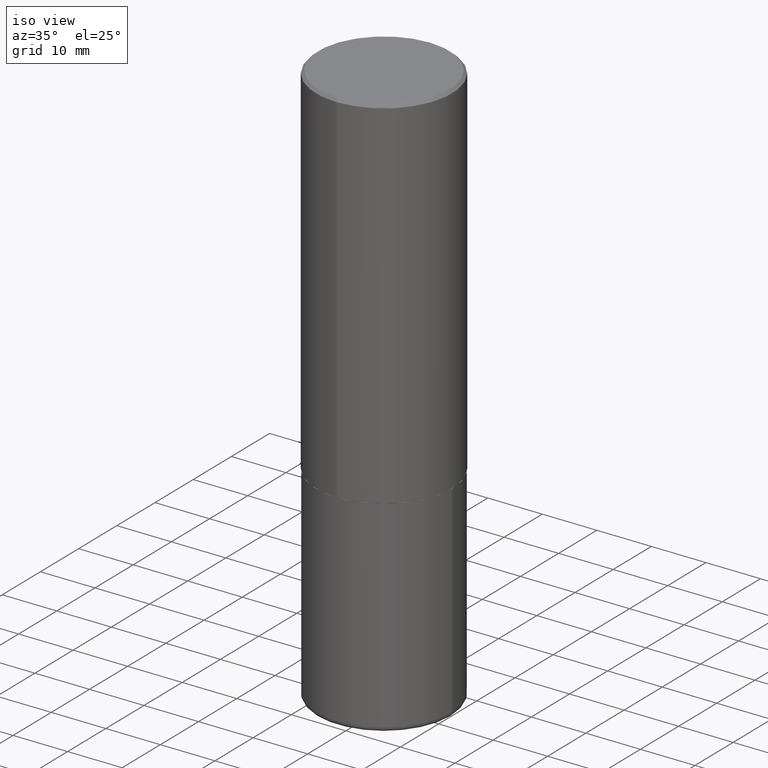
[diagram: clean part render]
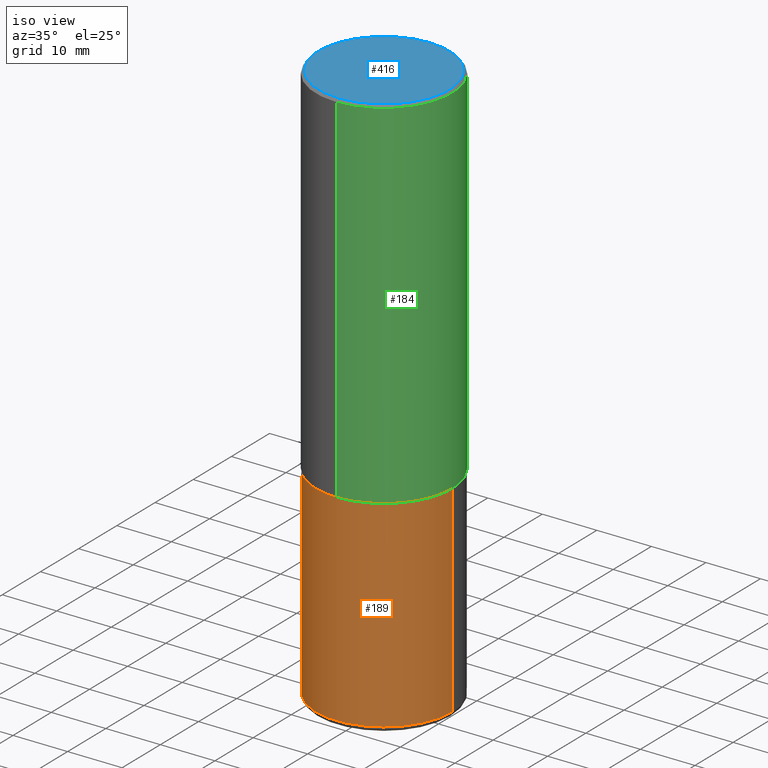
[diagram: same view with three faces highlighted in distinct colors, each labeled with its STEP entity id]
A machine part, iso view with three faces highlighted in distinct colors.
Their STEP definitions:

[orange] entity #189 — the highlighted cylindrical surface (partial cylindrical patch) has radius 12.5006 mm, axis along (-0, 0, 1).
#39 = CARTESIAN_POINT ( 'NONE',  ( 0.4921499999999999764, -3.436665081823295777E-15, 2.399810400207969603E-29 ) ) ;
#54 = DIRECTION ( 'NONE',  ( -2.445468806185136597E-29, 3.491481338843145583E-15, 1.000000000000000000 ) ) ;
#55 = AXIS2_PLACEMENT_3D ( 'NONE', #198, #144, #106 ) ;
#61 = VERTEX_POINT ( 'NONE', #103 ) ;
#84 = VECTOR ( 'NONE', #402, 39.37007874015748143 ) ;
#89 = ORIENTED_EDGE ( 'NONE', *, *, #381, .T. ) ;
#97 = VERTEX_POINT ( 'NONE', #294 ) ;
#103 = CARTESIAN_POINT ( 'NONE',  ( 0.4921499999999999764, -1.250893019267332682E-14, -2.598400000000000265 ) ) ;
#106 = DIRECTION ( 'NONE',  ( 1.000000000000000000, -6.982962677686265922E-15, 0.000000000000000000 ) ) ;
#112 = CARTESIAN_POINT ( 'NONE',  ( -0.4921499999999999764, -8.118349469953103765E-15, -2.598400000000000265 ) ) ;
#139 = AXIS2_PLACEMENT_3D ( 'NONE', #376, #54, #177 ) ;
#144 = DIRECTION ( 'NONE',  ( -2.445468806185136597E-29, 3.491481338843145583E-15, 1.000000000000000000 ) ) ;
#151 = DIRECTION ( 'NONE',  ( -2.445468806185136597E-29, 3.491481338843145583E-15, 1.000000000000000000 ) ) ;
#165 = DIRECTION ( 'NONE',  ( -2.445468806185136877E-29, 3.491481338843145188E-15, 1.000000000000000000 ) ) ;
#174 = DIRECTION ( 'NONE',  ( 1.000000000000000000, -6.982962677686266711E-15, 0.000000000000000000 ) ) ;
#175 = AXIS2_PLACEMENT_3D ( 'NONE', #379, #151, #174 ) ;
#177 = DIRECTION ( 'NONE',  ( 1.000000000000000000, -6.982962677686265922E-15, 4.876176775795935793E-29 ) ) ;
#189 = ADVANCED_FACE ( 'NONE', ( #401 ), #342, .T. ) ;
#196 = VECTOR ( 'NONE', #165, 39.37007874015748143 ) ;
#198 = CARTESIAN_POINT ( 'NONE',  ( 6.354306145991459756E-29, -9.072265110850031044E-15, -2.598400000000000265 ) ) ;
#219 = VERTEX_POINT ( 'NONE', #112 ) ;
#244 = LINE ( 'NONE', #39, #196 ) ;
#261 = ORIENTED_EDGE ( 'NONE', *, *, #306, .T. ) ;
#276 = CARTESIAN_POINT ( 'NONE',  ( -0.4921499999999999764, 3.496936074043332897E-15, -2.420853904668951509E-29 ) ) ;
#282 = CIRCLE ( 'NONE', #55, 0.4921499999999999764 ) ;
#284 = EDGE_LOOP ( 'NONE', ( #387, #261, #89, #323 ) ) ;
#294 = CARTESIAN_POINT ( 'NONE',  ( 0.4921500000000000874, -1.759497105896613648E-14, -4.055100000000000371 ) ) ;
#300 = CIRCLE ( 'NONE', #175, 0.4921499999999999209 ) ;
#302 = VERTEX_POINT ( 'NONE', #382 ) ;
#304 = EDGE_CURVE ( 'NONE', #302, #219, #351, .T. ) ;
#306 = EDGE_CURVE ( 'NONE', #302, #97, #300, .T. ) ;
#323 = ORIENTED_EDGE ( 'NONE', *, *, #352, .F. ) ;
#342 = CYLINDRICAL_SURFACE ( 'NONE', #139, 0.4921499999999999764 ) ;
#351 = LINE ( 'NONE', #276, #84 ) ;
#352 = EDGE_CURVE ( 'NONE', #219, #61, #282, .T. ) ;
#376 = CARTESIAN_POINT ( 'NONE',  ( 0.000000000000000000, 0.000000000000000000, 0.000000000000000000 ) ) ;
#379 = CARTESIAN_POINT ( 'NONE',  ( 9.916620555961347550E-29, -1.415830597714284070E-14, -4.055100000000000371 ) ) ;
#381 = EDGE_CURVE ( 'NONE', #97, #61, #244, .T. ) ;
#382 = CARTESIAN_POINT ( 'NONE',  ( -0.4921500000000000874, -1.066136990309950544E-14, -4.055100000000000371 ) ) ;
#387 = ORIENTED_EDGE ( 'NONE', *, *, #304, .F. ) ;
#401 = FACE_OUTER_BOUND ( 'NONE', #284, .T. ) ;
#402 = DIRECTION ( 'NONE',  ( -2.445468806185136877E-29, 3.491481338843145188E-15, 1.000000000000000000 ) ) ;

[blue] entity #416 — the highlighted planar face has unit normal (0, -0, -1).
#9 = DIRECTION ( 'NONE',  ( -2.445165534156573035E-29, 3.491915641649220758E-15, 1.000000000000000000 ) ) ;
#10 = AXIS2_PLACEMENT_3D ( 'NONE', #104, #234, #47 ) ;
#47 = DIRECTION ( 'NONE',  ( -6.982962677686264344E-15, -1.000000000000000000, 3.491915641649220363E-15 ) ) ;
#57 = ORIENTED_EDGE ( 'NONE', *, *, #407, .T. ) ;
#70 = FACE_OUTER_BOUND ( 'NONE', #349, .T. ) ;
#74 = DIRECTION ( 'NONE',  ( -6.982962677686264344E-15, -1.000000000000000000, 3.491915641649220363E-15 ) ) ;
#91 = EDGE_CURVE ( 'NONE', #396, #254, #403, .T. ) ;
#104 = CARTESIAN_POINT ( 'NONE',  ( -2.509946669845094675E-45, 3.584428912360186000E-31, 1.026493558322981695E-16 ) ) ;
#123 = ORIENTED_EDGE ( 'NONE', *, *, #91, .T. ) ;
#148 = AXIS2_PLACEMENT_3D ( 'NONE', #333, #9, #74 ) ;
#202 = DIRECTION ( 'NONE',  ( 2.445165534156572474E-29, -3.491915641649220758E-15, -1.000000000000000000 ) ) ;
#208 = CARTESIAN_POINT ( 'NONE',  ( -3.307789109625543719E-15, -0.4721500000000000696, 1.751357326036977986E-15 ) ) ;
#234 = DIRECTION ( 'NONE',  ( -2.445165534156573035E-29, 3.491915641649220758E-15, 1.000000000000000000 ) ) ;
#247 = AXIS2_PLACEMENT_3D ( 'NONE', #332, #202, #344 ) ;
#254 = VERTEX_POINT ( 'NONE', #406 ) ;
#332 = CARTESIAN_POINT ( 'NONE',  ( 3.297005828269570364E-15, 0.4721500000000000696, -1.597383292288530583E-15 ) ) ;
#333 = CARTESIAN_POINT ( 'NONE',  ( -2.509946669845094675E-45, 3.584428912360186000E-31, 1.026493558322981695E-16 ) ) ;
#344 = DIRECTION ( 'NONE',  ( 6.982962677686265922E-15, 1.000000000000000000, -3.491915641649220758E-15 ) ) ;
#349 = EDGE_LOOP ( 'NONE', ( #57, #123 ) ) ;
#365 = PLANE ( 'NONE',  #247 ) ;
#369 = CIRCLE ( 'NONE', #10, 0.4721500000000000696 ) ;
#396 = VERTEX_POINT ( 'NONE', #208 ) ;
#403 = CIRCLE ( 'NONE', #148, 0.4721500000000000696 ) ;
#406 = CARTESIAN_POINT ( 'NONE',  ( 3.366835455046433267E-15, 0.4721500000000000696, -1.546058614372381449E-15 ) ) ;
#407 = EDGE_CURVE ( 'NONE', #254, #396, #369, .T. ) ;
#416 = ADVANCED_FACE ( 'NONE', ( #70 ), #365, .F. ) ;

[green] entity #184 — the highlighted cylindrical surface (partial cylindrical patch) has radius 12.5006 mm, axis along (-0, 0, 1).
#8 = LINE ( 'NONE', #204, #114 ) ;
#12 = CARTESIAN_POINT ( 'NONE',  ( 3.496936074043366423E-15, 0.4921499999999912056, -2.597400000000002152 ) ) ;
#15 = CYLINDRICAL_SURFACE ( 'NONE', #361, 0.4921500000000000874 ) ;
#32 = DIRECTION ( 'NONE',  ( -2.445165534156573315E-29, 3.491915641649220758E-15, 1.000000000000000000 ) ) ;
#34 = EDGE_CURVE ( 'NONE', #127, #259, #109, .T. ) ;
#35 = CARTESIAN_POINT ( 'NONE',  ( -3.436665081823296565E-15, -0.4921500000000000874, 1.718546283037664290E-15 ) ) ;
#53 = AXIS2_PLACEMENT_3D ( 'NONE', #362, #267, #233 ) ;
#64 = VECTOR ( 'NONE', #32, 39.37007874015748143 ) ;
#65 = ORIENTED_EDGE ( 'NONE', *, *, #68, .F. ) ;
#68 = EDGE_CURVE ( 'NONE', #259, #92, #384, .T. ) ;
#78 = EDGE_CURVE ( 'NONE', #314, #92, #8, .T. ) ;
#92 = VERTEX_POINT ( 'NONE', #168 ) ;
#101 = EDGE_CURVE ( 'NONE', #127, #314, #345, .T. ) ;
#109 = LINE ( 'NONE', #35, #64 ) ;
#114 = VECTOR ( 'NONE', #393, 39.37007874015748143 ) ;
#118 = ORIENTED_EDGE ( 'NONE', *, *, #101, .T. ) ;
#119 = CARTESIAN_POINT ( 'NONE',  ( -3.376394089603258656E-15, -0.4921500000000000874, -0.01999999999999838712 ) ) ;
#120 = ORIENTED_EDGE ( 'NONE', *, *, #78, .T. ) ;
#127 = VERTEX_POINT ( 'NONE', #391 ) ;
#128 = EDGE_LOOP ( 'NONE', ( #118, #120, #65, #410 ) ) ;
#129 = DIRECTION ( 'NONE',  ( -6.982962677686266711E-15, -1.000000000000000000, 3.330506545156064285E-15 ) ) ;
#132 = DIRECTION ( 'NONE',  ( -2.445165534156573035E-29, 3.491915641649220758E-15, 1.000000000000000000 ) ) ;
#138 = CARTESIAN_POINT ( 'NONE',  ( 6.351072958418283916E-29, -9.069901687619687764E-15, -2.597400000000000375 ) ) ;
#157 = AXIS2_PLACEMENT_3D ( 'NONE', #138, #132, #129 ) ;
#168 = CARTESIAN_POINT ( 'NONE',  ( 3.436665081823296565E-15, 0.4921499999999999764, -0.02000000000000182535 ) ) ;
#184 = ADVANCED_FACE ( 'NONE', ( #283 ), #15, .T. ) ;
#204 = CARTESIAN_POINT ( 'NONE',  ( 3.496936074043333291E-15, 0.4921500000000000874, -1.718546283037664290E-15 ) ) ;
#233 = DIRECTION ( 'NONE',  ( -6.982962677686265922E-15, -1.000000000000000000, 3.495297233588267070E-15 ) ) ;
#259 = VERTEX_POINT ( 'NONE', #119 ) ;
#267 = DIRECTION ( 'NONE',  ( -2.445165534156573035E-29, 3.491915641649220758E-15, 1.000000000000000000 ) ) ;
#283 = FACE_OUTER_BOUND ( 'NONE', #128, .T. ) ;
#305 = CARTESIAN_POINT ( 'NONE',  ( 0.000000000000000000, 0.000000000000000000, 0.000000000000000000 ) ) ;
#314 = VERTEX_POINT ( 'NONE', #12 ) ;
#337 = DIRECTION ( 'NONE',  ( -6.982962677686265922E-15, -1.000000000000000000, 3.491915641649220758E-15 ) ) ;
#345 = CIRCLE ( 'NONE', #157, 0.4921500000000002539 ) ;
#348 = DIRECTION ( 'NONE',  ( -2.445165534156573035E-29, 3.491915641649220758E-15, 1.000000000000000000 ) ) ;
#361 = AXIS2_PLACEMENT_3D ( 'NONE', #305, #348, #337 ) ;
#362 = CARTESIAN_POINT ( 'NONE',  ( 4.890331068313172624E-31, -6.983831283298479479E-17, -0.02000000000000010797 ) ) ;
#384 = CIRCLE ( 'NONE', #53, 0.4921500000000000319 ) ;
#391 = CARTESIAN_POINT ( 'NONE',  ( -3.436665081823234245E-15, -0.4921500000000093022, -2.597399999999999043 ) ) ;
#393 = DIRECTION ( 'NONE',  ( -2.445165534156573315E-29, 3.491915641649220758E-15, 1.000000000000000000 ) ) ;
#410 = ORIENTED_EDGE ( 'NONE', *, *, #34, .F. ) ;